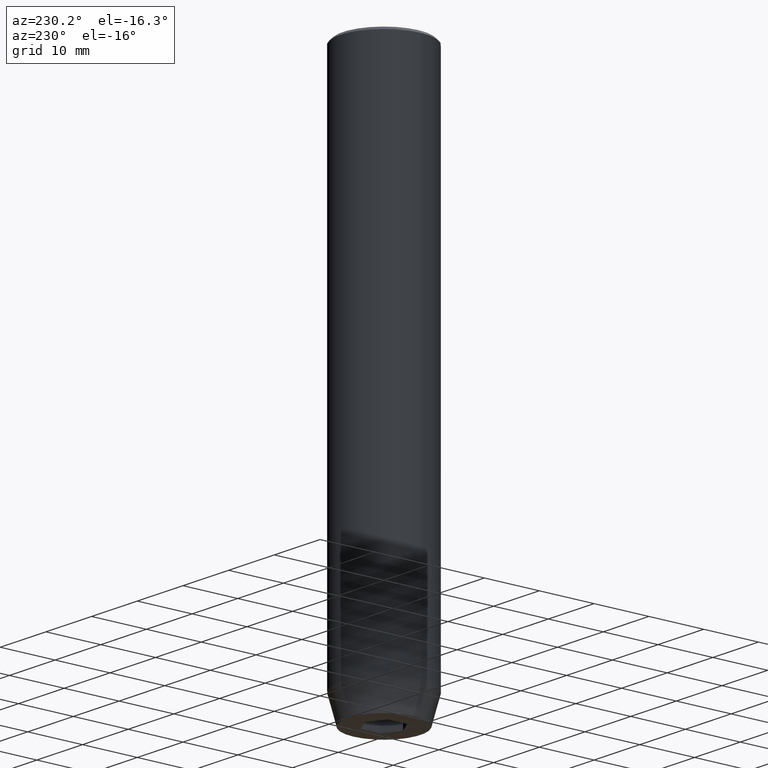
[diagram: clean part render]
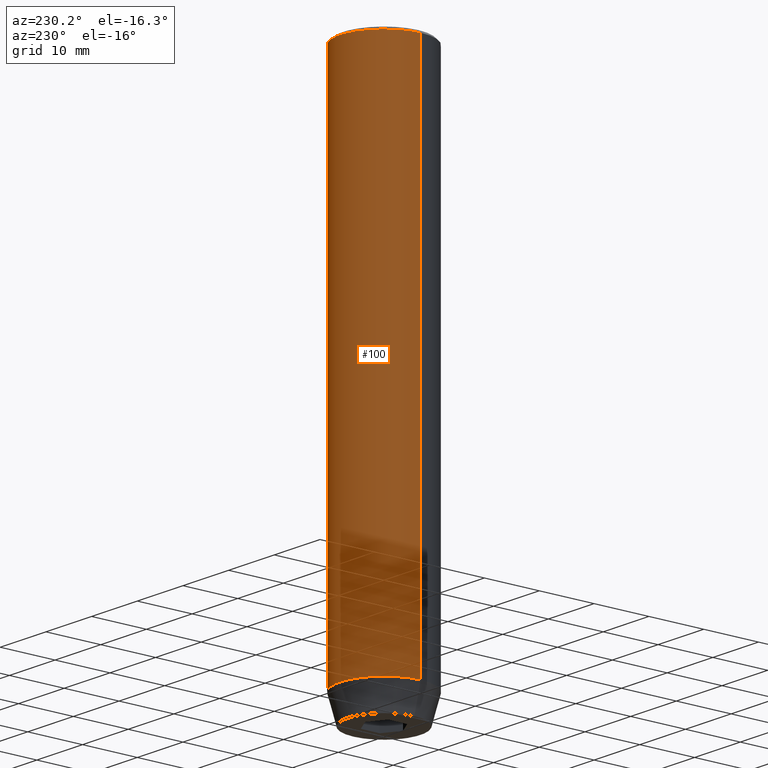
[diagram: same view with one face highlighted and labeled with its STEP entity id]
A machine part, auxiliary view. The second image highlights one B-rep face of the part: STEP entity #100.
In plain terms, the highlighted cylindrical surface (partial cylindrical patch) has radius 8 mm, axis along (-0, -0, 1).
Its self-contained STEP definition (entity closure, byte-faithful):
#3 = FACE_OUTER_BOUND ( 'NONE', #147, .T. ) ;
#21 = ORIENTED_EDGE ( 'NONE', *, *, #143, .T. ) ;
#35 = CARTESIAN_POINT ( 'NONE',  ( -8.000000000000000000, 9.797174393178825657E-16, -0.5000000000000213163 ) ) ;
#46 = AXIS2_PLACEMENT_3D ( 'NONE', #251, #203, #532 ) ;
#66 = CARTESIAN_POINT ( 'NONE',  ( 8.000000000000000000, 0.000000000000000000, 0.000000000000000000 ) ) ;
#92 = CARTESIAN_POINT ( 'NONE',  ( 8.000000000000000000, 0.000000000000000000, -95.00000000000000000 ) ) ;
#93 = DIRECTION ( 'NONE',  ( -0.000000000000000000, -0.000000000000000000, 1.000000000000000000 ) ) ;
#100 = ADVANCED_FACE ( 'NONE', ( #3 ), #138, .T. ) ;
#101 = CARTESIAN_POINT ( 'NONE',  ( 0.000000000000000000, 0.000000000000000000, -0.5000000000000213163 ) ) ;
#138 = CYLINDRICAL_SURFACE ( 'NONE', #414, 8.000000000000000000 ) ;
#143 = EDGE_CURVE ( 'NONE', #387, #181, #483, .T. ) ;
#147 = EDGE_LOOP ( 'NONE', ( #21, #379, #439, #333 ) ) ;
#156 = VERTEX_POINT ( 'NONE', #35 ) ;
#160 = VECTOR ( 'NONE', #556, 1000.000000000000000 ) ;
#168 = AXIS2_PLACEMENT_3D ( 'NONE', #101, #561, #467 ) ;
#171 = CARTESIAN_POINT ( 'NONE',  ( -8.000000000000000000, 9.797174393178825657E-16, 0.000000000000000000 ) ) ;
#180 = CIRCLE ( 'NONE', #168, 8.000000000000000000 ) ;
#181 = VERTEX_POINT ( 'NONE', #426 ) ;
#192 = CARTESIAN_POINT ( 'NONE',  ( 8.000000000000000000, 0.000000000000000000, -0.5000000000000213163 ) ) ;
#203 = DIRECTION ( 'NONE',  ( -0.000000000000000000, -0.000000000000000000, 1.000000000000000000 ) ) ;
#251 = CARTESIAN_POINT ( 'NONE',  ( 0.000000000000000000, 0.000000000000000000, -95.00000000000000000 ) ) ;
#270 = LINE ( 'NONE', #171, #415 ) ;
#271 = DIRECTION ( 'NONE',  ( 1.000000000000000000, 0.000000000000000000, 0.000000000000000000 ) ) ;
#310 = CARTESIAN_POINT ( 'NONE',  ( 0.000000000000000000, 0.000000000000000000, 0.000000000000000000 ) ) ;
#311 = EDGE_CURVE ( 'NONE', #181, #156, #270, .T. ) ;
#333 = ORIENTED_EDGE ( 'NONE', *, *, #507, .F. ) ;
#379 = ORIENTED_EDGE ( 'NONE', *, *, #311, .T. ) ;
#387 = VERTEX_POINT ( 'NONE', #92 ) ;
#414 = AXIS2_PLACEMENT_3D ( 'NONE', #310, #93, #271 ) ;
#415 = VECTOR ( 'NONE', #545, 1000.000000000000000 ) ;
#421 = LINE ( 'NONE', #66, #160 ) ;
#426 = CARTESIAN_POINT ( 'NONE',  ( -8.000000000000000000, 9.797174393178825657E-16, -95.00000000000000000 ) ) ;
#439 = ORIENTED_EDGE ( 'NONE', *, *, #492, .T. ) ;
#467 = DIRECTION ( 'NONE',  ( 1.000000000000000000, 0.000000000000000000, 0.000000000000000000 ) ) ;
#483 = CIRCLE ( 'NONE', #46, 8.000000000000000000 ) ;
#490 = VERTEX_POINT ( 'NONE', #192 ) ;
#492 = EDGE_CURVE ( 'NONE', #156, #490, #180, .T. ) ;
#507 = EDGE_CURVE ( 'NONE', #387, #490, #421, .T. ) ;
#532 = DIRECTION ( 'NONE',  ( 1.000000000000000000, 0.000000000000000000, 0.000000000000000000 ) ) ;
#545 = DIRECTION ( 'NONE',  ( -0.000000000000000000, -0.000000000000000000, 1.000000000000000000 ) ) ;
#556 = DIRECTION ( 'NONE',  ( -0.000000000000000000, -0.000000000000000000, 1.000000000000000000 ) ) ;
#561 = DIRECTION ( 'NONE',  ( 0.000000000000000000, 0.000000000000000000, -1.000000000000000000 ) ) ;